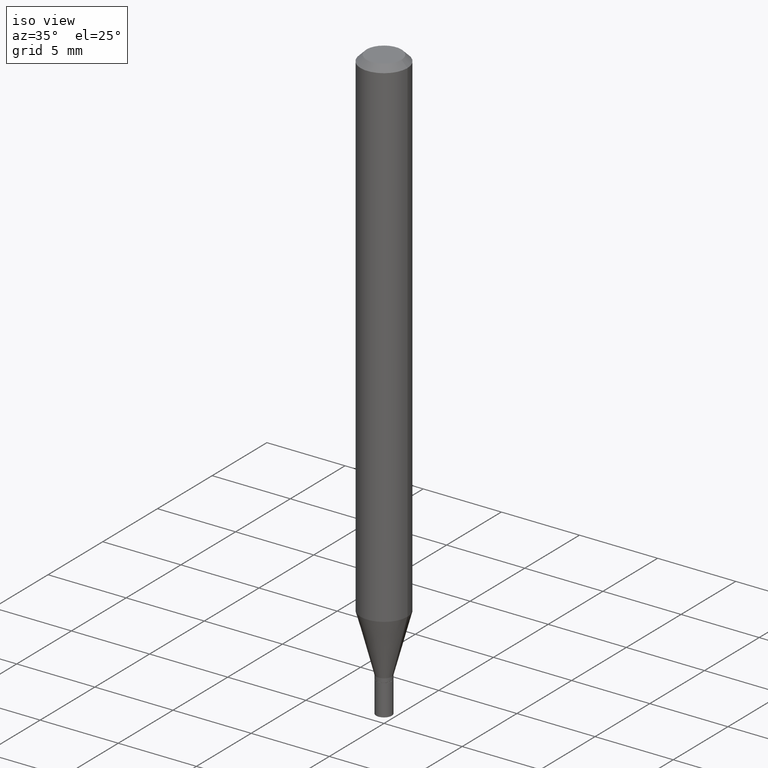
[diagram: clean part render]
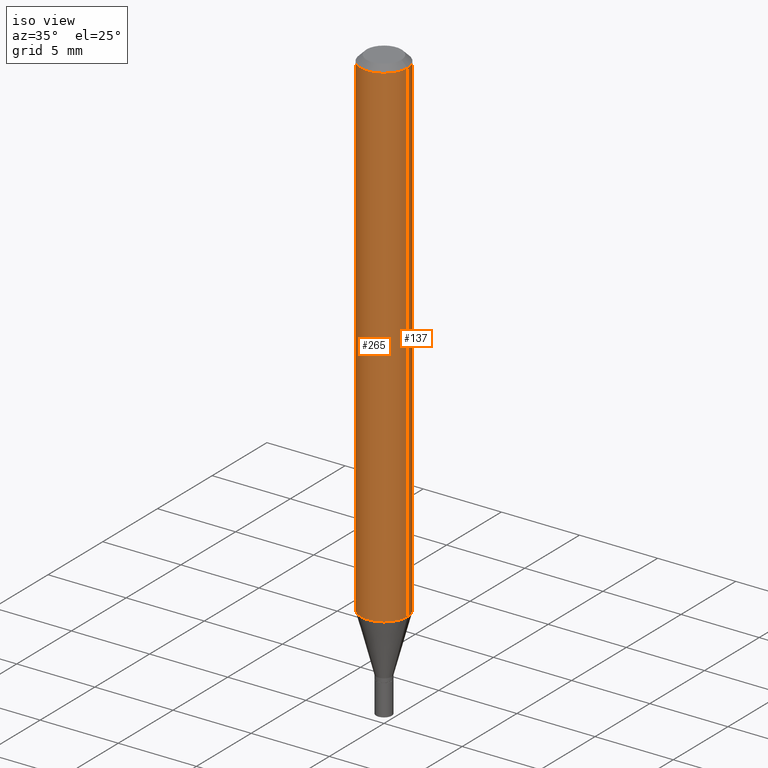
[diagram: same view with one multi-face feature highlighted, each face labeled with its STEP entity id]
A machine part, iso view. The highlighted faces form ONE feature: a constant-radius fillet chain: 2 tangent blend faces with common blend radius 1.4999 mm. The faces share edges in the B-rep.
Their STEP definitions:
[1] entity #265 (Cylinder):
#15 = CARTESIAN_POINT ( 'NONE',  ( 0.000000000000000000, 0.000000000000000000, 0.000000000000000000 ) ) ;
#42 = ORIENTED_EDGE ( 'NONE', *, *, #213, .T. ) ;
#44 = CARTESIAN_POINT ( 'NONE',  ( -0.05905000000000001914, -3.994159004369345529E-15, -1.264143800722164368 ) ) ;
#50 = CARTESIAN_POINT ( 'NONE',  ( 3.091424231198372341E-29, -4.413734489835684233E-15, -1.264143800722164368 ) ) ;
#55 = CYLINDRICAL_SURFACE ( 'NONE', #319, 0.05905000000000001914 ) ;
#87 = DIRECTION ( 'NONE',  ( -2.445468806185136597E-29, 3.491481338843145583E-15, 1.000000000000000000 ) ) ;
#88 = VERTEX_POINT ( 'NONE', #44 ) ;
#106 = DIRECTION ( 'NONE',  ( -2.445468806185136877E-29, 3.491481338843145188E-15, 1.000000000000000000 ) ) ;
#117 = CIRCLE ( 'NONE', #388, 0.05905000000000001914 ) ;
#138 = LINE ( 'NONE', #172, #356 ) ;
#145 = DIRECTION ( 'NONE',  ( -2.445468806185136597E-29, 3.491481338843145583E-15, 1.000000000000000000 ) ) ;
#147 = CARTESIAN_POINT ( 'NONE',  ( 3.668203209277705088E-31, -5.237222008264718399E-17, -0.01499999999999999944 ) ) ;
#149 = CARTESIAN_POINT ( 'NONE',  ( -0.05905000000000001914, 4.195754854663392958E-16, -2.904631170795522943E-30 ) ) ;
#150 = ORIENTED_EDGE ( 'NONE', *, *, #334, .F. ) ;
#153 = AXIS2_PLACEMENT_3D ( 'NONE', #147, #145, #291 ) ;
#172 = CARTESIAN_POINT ( 'NONE',  ( 0.05905000000000001914, -4.123439461173741806E-16, 2.879382386107500921E-30 ) ) ;
#181 = ORIENTED_EDGE ( 'NONE', *, *, #314, .F. ) ;
#192 = VERTEX_POINT ( 'NONE', #234 ) ;
#193 = DIRECTION ( 'NONE',  ( -2.445468806185136597E-29, 3.491481338843145583E-15, 1.000000000000000000 ) ) ;
#195 = DIRECTION ( 'NONE',  ( 1.000000000000000000, -6.982962677686270655E-15, 0.000000000000000000 ) ) ;
#207 = CARTESIAN_POINT ( 'NONE',  ( -0.05905000000000001914, -1.813477869492826360E-15, -0.01499999999999999944 ) ) ;
#213 = EDGE_CURVE ( 'NONE', #88, #382, #117, .T. ) ;
#234 = CARTESIAN_POINT ( 'NONE',  ( 0.05905000000000001914, -4.647161662000214077E-16, -0.01499999999999999944 ) ) ;
#235 = ORIENTED_EDGE ( 'NONE', *, *, #408, .T. ) ;
#240 = VECTOR ( 'NONE', #343, 39.37007874015748143 ) ;
#265 = ADVANCED_FACE ( 'NONE', ( #302 ), #55, .T. ) ;
#277 = VERTEX_POINT ( 'NONE', #207 ) ;
#291 = DIRECTION ( 'NONE',  ( 1.000000000000000000, -6.982962677686266711E-15, 0.000000000000000000 ) ) ;
#302 = FACE_OUTER_BOUND ( 'NONE', #361, .T. ) ;
#314 = EDGE_CURVE ( 'NONE', #277, #192, #436, .T. ) ;
#319 = AXIS2_PLACEMENT_3D ( 'NONE', #15, #87, #415 ) ;
#324 = CARTESIAN_POINT ( 'NONE',  ( 0.05905000000000001914, -4.826078435953059153E-15, -1.264143800722164368 ) ) ;
#334 = EDGE_CURVE ( 'NONE', #88, #277, #407, .T. ) ;
#343 = DIRECTION ( 'NONE',  ( -2.445468806185136877E-29, 3.491481338843145188E-15, 1.000000000000000000 ) ) ;
#356 = VECTOR ( 'NONE', #106, 39.37007874015748143 ) ;
#361 = EDGE_LOOP ( 'NONE', ( #150, #42, #235, #181 ) ) ;
#382 = VERTEX_POINT ( 'NONE', #324 ) ;
#388 = AXIS2_PLACEMENT_3D ( 'NONE', #50, #193, #195 ) ;
#407 = LINE ( 'NONE', #149, #240 ) ;
#408 = EDGE_CURVE ( 'NONE', #382, #192, #138, .T. ) ;
#415 = DIRECTION ( 'NONE',  ( 1.000000000000000000, -6.982962677686266711E-15, 4.876176775795935793E-29 ) ) ;
#436 = CIRCLE ( 'NONE', #153, 0.05905000000000001914 ) ;
[2] entity #137 (Cylinder):
#18 = ORIENTED_EDGE ( 'NONE', *, *, #408, .F. ) ;
#28 = AXIS2_PLACEMENT_3D ( 'NONE', #395, #428, #70 ) ;
#44 = CARTESIAN_POINT ( 'NONE',  ( -0.05905000000000001914, -3.994159004369345529E-15, -1.264143800722164368 ) ) ;
#70 = DIRECTION ( 'NONE',  ( 1.000000000000000000, -6.982962677686266711E-15, 0.000000000000000000 ) ) ;
#79 = DIRECTION ( 'NONE',  ( 1.000000000000000000, -6.982962677686266711E-15, 4.876176775795935793E-29 ) ) ;
#88 = VERTEX_POINT ( 'NONE', #44 ) ;
#102 = CIRCLE ( 'NONE', #372, 0.05905000000000001914 ) ;
#106 = DIRECTION ( 'NONE',  ( -2.445468806185136877E-29, 3.491481338843145188E-15, 1.000000000000000000 ) ) ;
#137 = ADVANCED_FACE ( 'NONE', ( #287 ), #440, .T. ) ;
#138 = LINE ( 'NONE', #172, #356 ) ;
#149 = CARTESIAN_POINT ( 'NONE',  ( -0.05905000000000001914, 4.195754854663392958E-16, -2.904631170795522943E-30 ) ) ;
#167 = EDGE_CURVE ( 'NONE', #382, #88, #102, .T. ) ;
#172 = CARTESIAN_POINT ( 'NONE',  ( 0.05905000000000001914, -4.123439461173741806E-16, 2.879382386107500921E-30 ) ) ;
#178 = EDGE_LOOP ( 'NONE', ( #279, #217, #223, #18 ) ) ;
#192 = VERTEX_POINT ( 'NONE', #234 ) ;
#207 = CARTESIAN_POINT ( 'NONE',  ( -0.05905000000000001914, -1.813477869492826360E-15, -0.01499999999999999944 ) ) ;
#217 = ORIENTED_EDGE ( 'NONE', *, *, #334, .T. ) ;
#223 = ORIENTED_EDGE ( 'NONE', *, *, #340, .F. ) ;
#231 = CARTESIAN_POINT ( 'NONE',  ( 3.091424231198372341E-29, -4.413734489835684233E-15, -1.264143800722164368 ) ) ;
#234 = CARTESIAN_POINT ( 'NONE',  ( 0.05905000000000001914, -4.647161662000214077E-16, -0.01499999999999999944 ) ) ;
#240 = VECTOR ( 'NONE', #343, 39.37007874015748143 ) ;
#260 = AXIS2_PLACEMENT_3D ( 'NONE', #317, #293, #79 ) ;
#274 = DIRECTION ( 'NONE',  ( -2.445468806185136597E-29, 3.491481338843145583E-15, 1.000000000000000000 ) ) ;
#277 = VERTEX_POINT ( 'NONE', #207 ) ;
#279 = ORIENTED_EDGE ( 'NONE', *, *, #167, .T. ) ;
#287 = FACE_OUTER_BOUND ( 'NONE', #178, .T. ) ;
#289 = CIRCLE ( 'NONE', #28, 0.05905000000000001914 ) ;
#293 = DIRECTION ( 'NONE',  ( -2.445468806185136597E-29, 3.491481338843145583E-15, 1.000000000000000000 ) ) ;
#317 = CARTESIAN_POINT ( 'NONE',  ( 0.000000000000000000, 0.000000000000000000, 0.000000000000000000 ) ) ;
#324 = CARTESIAN_POINT ( 'NONE',  ( 0.05905000000000001914, -4.826078435953059153E-15, -1.264143800722164368 ) ) ;
#334 = EDGE_CURVE ( 'NONE', #88, #277, #407, .T. ) ;
#340 = EDGE_CURVE ( 'NONE', #192, #277, #289, .T. ) ;
#343 = DIRECTION ( 'NONE',  ( -2.445468806185136877E-29, 3.491481338843145188E-15, 1.000000000000000000 ) ) ;
#356 = VECTOR ( 'NONE', #106, 39.37007874015748143 ) ;
#372 = AXIS2_PLACEMENT_3D ( 'NONE', #231, #274, #418 ) ;
#382 = VERTEX_POINT ( 'NONE', #324 ) ;
#395 = CARTESIAN_POINT ( 'NONE',  ( 3.668203209277705088E-31, -5.237222008264718399E-17, -0.01499999999999999944 ) ) ;
#407 = LINE ( 'NONE', #149, #240 ) ;
#408 = EDGE_CURVE ( 'NONE', #382, #192, #138, .T. ) ;
#418 = DIRECTION ( 'NONE',  ( 1.000000000000000000, -6.982962677686270655E-15, 0.000000000000000000 ) ) ;
#428 = DIRECTION ( 'NONE',  ( -2.445468806185136597E-29, 3.491481338843145583E-15, 1.000000000000000000 ) ) ;
#440 = CYLINDRICAL_SURFACE ( 'NONE', #260, 0.05905000000000001914 ) ;